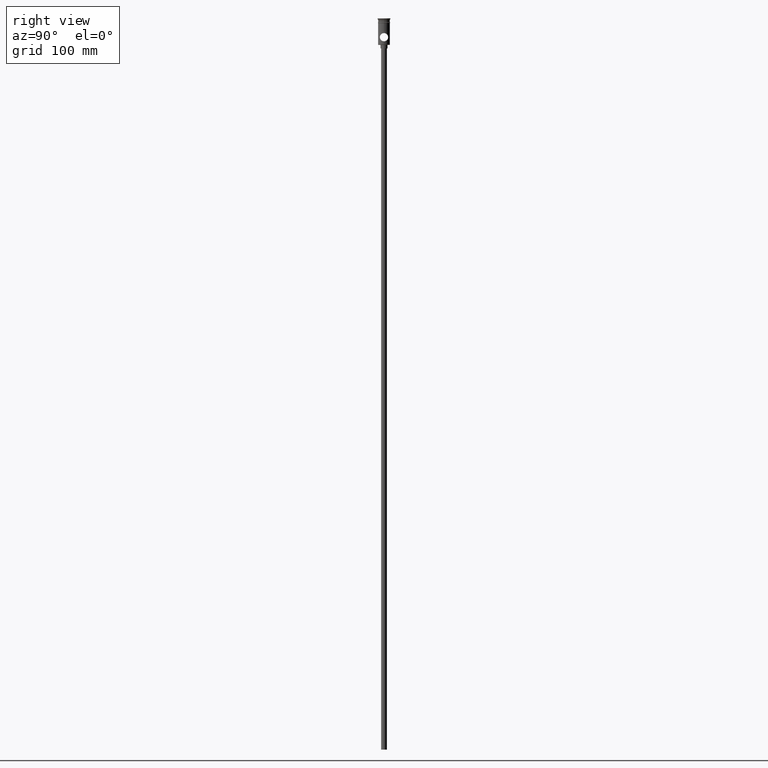
[diagram: clean part render]
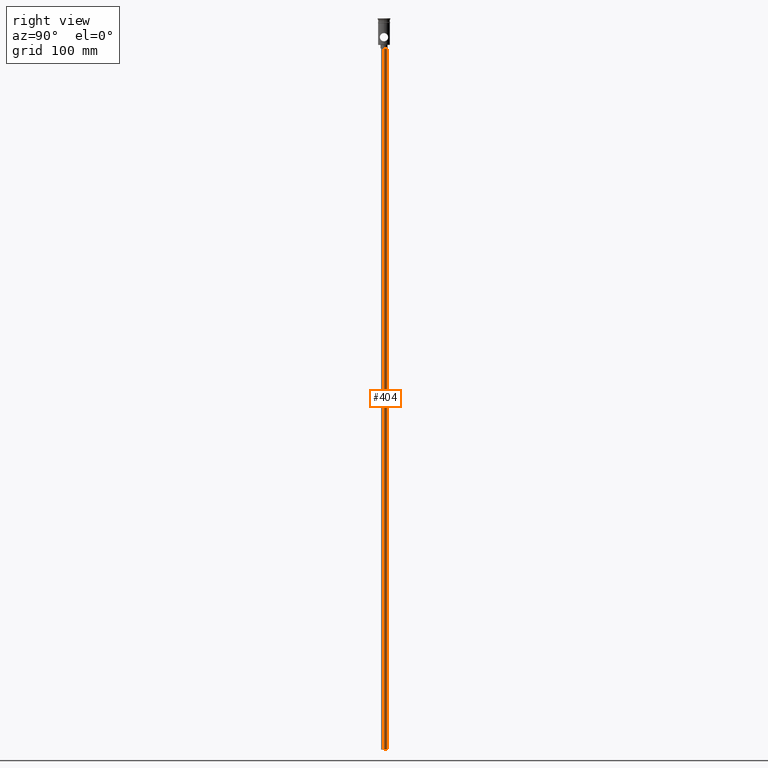
[diagram: same view with one face highlighted and labeled with its STEP entity id]
A machine part, right view. The second image highlights one B-rep face of the part: STEP entity #404.
In plain terms, the highlighted cylindrical surface (edge-blend (fillet) strip) has radius 2.5 mm, axis along (-0, -0, 1).
Its self-contained STEP definition (entity closure, byte-faithful):
#40 = CARTESIAN_POINT ( 'NONE',  ( 2.500000000000000000, 0.000000000000000000, -622.4999999999998863 ) ) ;
#66 = CIRCLE ( 'NONE', #903, 2.500000000000000000 ) ;
#69 = VERTEX_POINT ( 'NONE', #497 ) ;
#97 = CARTESIAN_POINT ( 'NONE',  ( 0.000000000000000000, 0.000000000000000000, -622.4999999999998863 ) ) ;
#99 = CARTESIAN_POINT ( 'NONE',  ( 2.500000000000000000, 0.000000000000000000, -622.4999999999998863 ) ) ;
#116 = DIRECTION ( 'NONE',  ( -0.000000000000000000, -0.000000000000000000, 1.000000000000000000 ) ) ;
#180 = VERTEX_POINT ( 'NONE', #99 ) ;
#194 = ORIENTED_EDGE ( 'NONE', *, *, #1358, .T. ) ;
#311 = DIRECTION ( 'NONE',  ( -1.000000000000000000, 0.000000000000000000, 0.000000000000000000 ) ) ;
#350 = DIRECTION ( 'NONE',  ( -1.000000000000000000, 0.000000000000000000, 0.000000000000000000 ) ) ;
#357 = EDGE_CURVE ( 'NONE', #641, #916, #66, .T. ) ;
#358 = DIRECTION ( 'NONE',  ( -0.000000000000000000, -0.000000000000000000, 1.000000000000000000 ) ) ;
#404 = ADVANCED_FACE ( 'NONE', ( #791 ), #895, .T. ) ;
#446 = CARTESIAN_POINT ( 'NONE',  ( -2.500000000000000000, 3.061616997868383141E-16, -25.50000000000000000 ) ) ;
#495 = CIRCLE ( 'NONE', #1344, 2.500000000000000000 ) ;
#497 = CARTESIAN_POINT ( 'NONE',  ( -2.500000000000000000, 3.061616997868383141E-16, -622.4999999999998863 ) ) ;
#514 = ORIENTED_EDGE ( 'NONE', *, *, #357, .T. ) ;
#560 = DIRECTION ( 'NONE',  ( 1.000000000000000000, 0.000000000000000000, 0.000000000000000000 ) ) ;
#637 = CARTESIAN_POINT ( 'NONE',  ( -2.500000000000000000, 3.061616997868383141E-16, -622.4999999999998863 ) ) ;
#641 = VERTEX_POINT ( 'NONE', #446 ) ;
#655 = CARTESIAN_POINT ( 'NONE',  ( 0.000000000000000000, 0.000000000000000000, -25.50000000000000000 ) ) ;
#678 = CARTESIAN_POINT ( 'NONE',  ( 0.000000000000000000, 0.000000000000000000, -622.4999999999998863 ) ) ;
#699 = VECTOR ( 'NONE', #116, 1000.000000000000000 ) ;
#772 = DIRECTION ( 'NONE',  ( 0.000000000000000000, 0.000000000000000000, -1.000000000000000000 ) ) ;
#784 = LINE ( 'NONE', #637, #699 ) ;
#791 = FACE_OUTER_BOUND ( 'NONE', #1217, .T. ) ;
#792 = AXIS2_PLACEMENT_3D ( 'NONE', #678, #1146, #560 ) ;
#819 = LINE ( 'NONE', #40, #959 ) ;
#895 = CYLINDRICAL_SURFACE ( 'NONE', #792, 2.500000000000000000 ) ;
#903 = AXIS2_PLACEMENT_3D ( 'NONE', #655, #1386, #350 ) ;
#916 = VERTEX_POINT ( 'NONE', #1243 ) ;
#959 = VECTOR ( 'NONE', #358, 1000.000000000000000 ) ;
#1075 = EDGE_CURVE ( 'NONE', #180, #916, #819, .T. ) ;
#1146 = DIRECTION ( 'NONE',  ( -0.000000000000000000, -0.000000000000000000, 1.000000000000000000 ) ) ;
#1150 = ORIENTED_EDGE ( 'NONE', *, *, #1277, .F. ) ;
#1217 = EDGE_LOOP ( 'NONE', ( #1150, #194, #514, #1245 ) ) ;
#1243 = CARTESIAN_POINT ( 'NONE',  ( 2.500000000000000000, 0.000000000000000000, -25.50000000000000000 ) ) ;
#1245 = ORIENTED_EDGE ( 'NONE', *, *, #1075, .F. ) ;
#1277 = EDGE_CURVE ( 'NONE', #69, #180, #495, .T. ) ;
#1344 = AXIS2_PLACEMENT_3D ( 'NONE', #97, #772, #311 ) ;
#1358 = EDGE_CURVE ( 'NONE', #69, #641, #784, .T. ) ;
#1386 = DIRECTION ( 'NONE',  ( 0.000000000000000000, 0.000000000000000000, -1.000000000000000000 ) ) ;